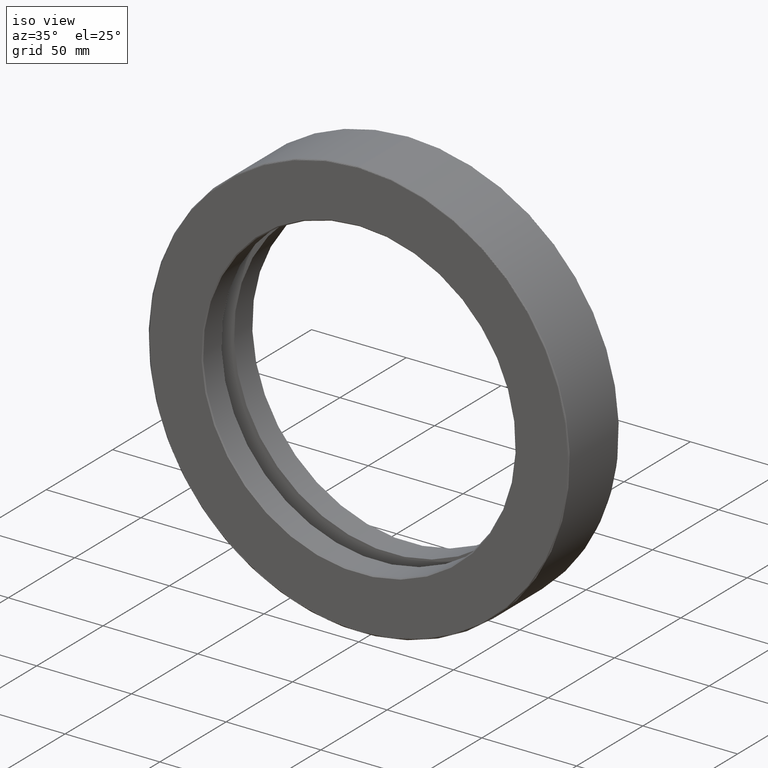
[diagram: clean part render]
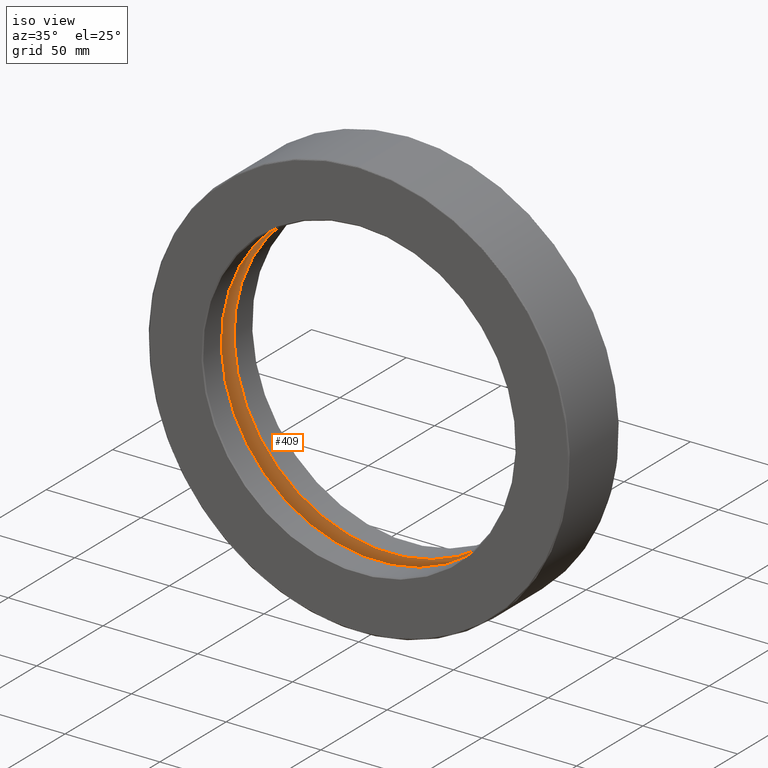
[diagram: same view with one face highlighted and labeled with its STEP entity id]
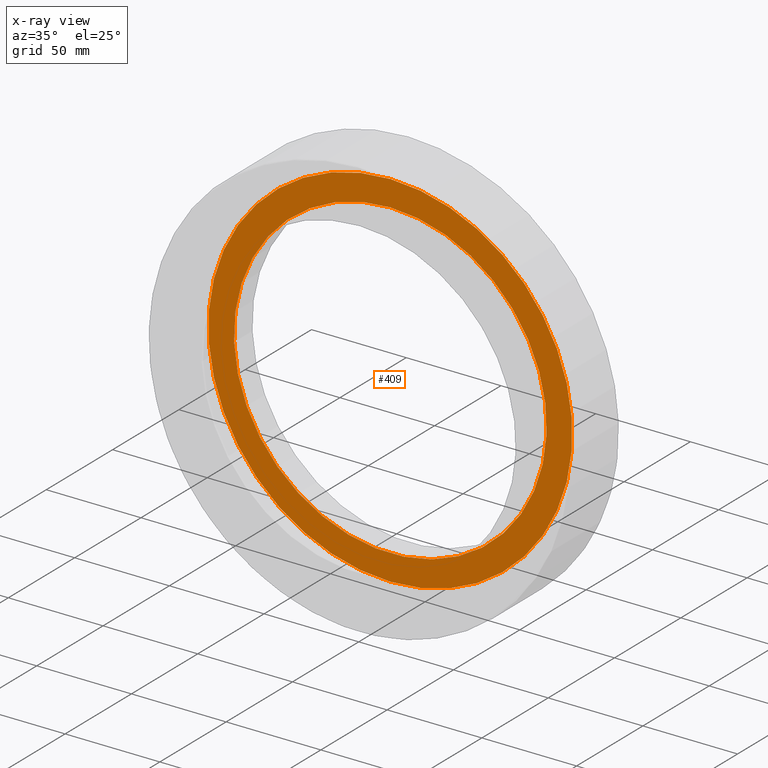
[diagram: x-ray of the same camera — body ghosted, the highlighted face saturated]
A machine part, iso view. The second image highlights one B-rep face of the part: STEP entity #409.
The next image is the same camera in x-ray: the body ghosted, the highlighted face saturated — about 0% of this face is hidden behind the body in this view.
In plain terms, the highlighted planar face has unit normal (0, -1, 0).
Its self-contained STEP definition (entity closure, byte-faithful):
#13 = AXIS2_PLACEMENT_3D ( 'NONE', #257, #17, #253 ) ;
#17 = DIRECTION ( 'NONE',  ( 0.0000000000000000000, -1.000000000000000000, 0.0000000000000000000 ) ) ;
#26 = CARTESIAN_POINT ( 'NONE',  ( 0.0000000000000000000, 0.9374999999999996700, 3.250000000000000000 ) ) ;
#48 = FACE_OUTER_BOUND ( 'NONE', #456, .T. ) ;
#114 = DIRECTION ( 'NONE',  ( -0.0000000000000000000, 1.000000000000000000, -0.0000000000000000000 ) ) ;
#123 = CARTESIAN_POINT ( 'NONE',  ( 0.0000000000000000000, 0.9374999999999994400, 3.783499999999999200 ) ) ;
#174 = ORIENTED_EDGE ( 'NONE', *, *, #415, .T. ) ;
#232 = CARTESIAN_POINT ( 'NONE',  ( 0.0000000000000000000, 0.9374999999999994400, 0.0000000000000000000 ) ) ;
#233 = EDGE_CURVE ( 'NONE', #493, #493, #517, .T. ) ;
#253 = DIRECTION ( 'NONE',  ( 0.0000000000000000000, -0.0000000000000000000, -1.000000000000000000 ) ) ;
#256 = AXIS2_PLACEMENT_3D ( 'NONE', #388, #114, #482 ) ;
#257 = CARTESIAN_POINT ( 'NONE',  ( -2.400288185623479300E-016, 0.9374999999999994400, 0.0000000000000000000 ) ) ;
#273 = DIRECTION ( 'NONE',  ( -0.0000000000000000000, 1.000000000000000000, -0.0000000000000000000 ) ) ;
#336 = ORIENTED_EDGE ( 'NONE', *, *, #233, .F. ) ;
#337 = CIRCLE ( 'NONE', #256, 3.250000000000000000 ) ;
#388 = CARTESIAN_POINT ( 'NONE',  ( 0.0000000000000000000, 0.9374999999999996700, 0.0000000000000000000 ) ) ;
#409 = ADVANCED_FACE ( 'NONE', ( #464, #48 ), #525, .T. ) ;
#415 = EDGE_CURVE ( 'NONE', #477, #477, #337, .T. ) ;
#456 = EDGE_LOOP ( 'NONE', ( #336 ) ) ;
#464 = FACE_BOUND ( 'NONE', #519, .T. ) ;
#469 = AXIS2_PLACEMENT_3D ( 'NONE', #232, #273, #556 ) ;
#477 = VERTEX_POINT ( 'NONE', #26 ) ;
#482 = DIRECTION ( 'NONE',  ( 0.0000000000000000000, 0.0000000000000000000, 1.000000000000000000 ) ) ;
#493 = VERTEX_POINT ( 'NONE', #123 ) ;
#517 = CIRCLE ( 'NONE', #469, 3.783499999999999200 ) ;
#519 = EDGE_LOOP ( 'NONE', ( #174 ) ) ;
#525 = PLANE ( 'NONE',  #13 ) ;
#556 = DIRECTION ( 'NONE',  ( 0.0000000000000000000, 0.0000000000000000000, 1.000000000000000000 ) ) ;